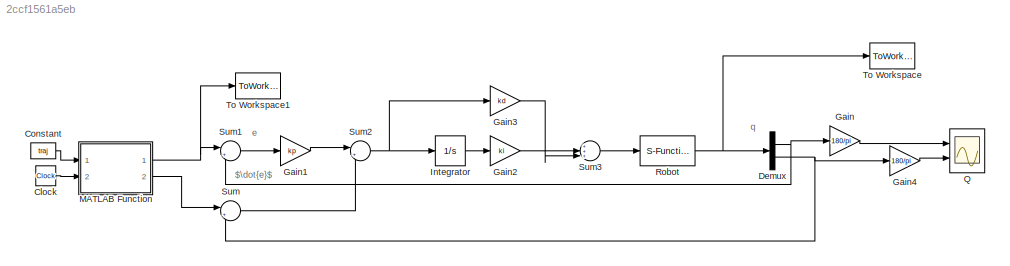
MODEL slx_2ccf1561a5eb
KIND model
CONFIG AbsTol = auto
CONFIG EnableMultiTasking = on
CONFIG FixedStep = auto
CONFIG MaxStep = 0.1
CONFIG MinStep = auto
CONFIG RelTol = 1e-4
CONFIG SampleTimeConstraint = Unconstrained
CONFIG SolverName = ode45
CONFIG StartTime = 0.0
CONFIG StopTime = 50
BLOCK [Clock] Clock
  DisplayTime = on
BLOCK [Constant] Constant
  Value = traj
BLOCK [Demux] Demux
  Outputs = 2
  Ports = [1, 2]
BLOCK [Gain] Gain
  Gain = 180/pi
BLOCK [Gain] Gain1
  Gain = kp
  Multiplication = Matrix(K*u)
BLOCK [Gain] Gain2
  Gain = ki
  Multiplication = Matrix(K*u)
BLOCK [Gain] Gain3
  Gain = kd
  Multiplication = Matrix(K*u)
BLOCK [Gain] Gain4
  Gain = 180/pi
BLOCK [Integrator] Integrator
  InitialCondition = [pi/4; -pi/2]
  Ports = [1, 1]
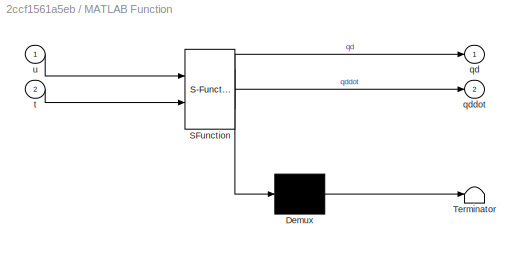
BLOCK [SubSystem] MATLAB Function
  ErrorFcn = Stateflow.Translate.translate
  PermitHierarchicalResolution = ExplicitOnly
  Ports = [2, 2]
  RequestExecContextInheritance = off
  SFBlockType = MATLAB Function
  TreatAsAtomicUnit = on
BLOCK [Demux] MATLAB Function/ Demux 
  Outputs = 1
  Ports = [1, 1]
BLOCK [S-Function] MATLAB Function/ SFunction 
  EnableBusSupport = on
  FunctionName = sf_sfun
  PortCounts = [2 3]
  Ports = [2, 3]
  SFcnIsStateOwnerBlock = off
  SFunctionDeploymentMode = off
  Tag = Stateflow S-Function 2
BLOCK [Terminator] MATLAB Function/ Terminator 
BLOCK [Outport] MATLAB Function/qd
BLOCK [Outport] MATLAB Function/qddot
  Port = 2
BLOCK [Inport] MATLAB Function/t
  Port = 2
BLOCK [Inport] MATLAB Function/u
BLOCK [Scope] Q
  Floating = off
  NumInputPorts = 2
  Ports = [2]
  ScopeSpecificationString = Simulink.scopes.TimeScopeBlockCfg('CurrentConfiguration', extmgr.ConfigurationSet(extmgr.Configuration('Core','General UI',true),extmgr.Configuration('Core','Source UI',true),extmgr.Configuration('Sources','WiredSimulink',true,'DataLoggingSaveFormat','StructureWithTime','DataLoggingLimitDataPoints',true,'DataLoggingDecimation','1','DataLoggingDecimateData',true),extmgr.Configuration('Visuals','Tim...<+2373ch>
BLOCK [S-Function] Robot
  EnableBusSupport = off
  FunctionName = robo
  Parameters = q0
  Ports = [1, 1]
  SFcnIsStateOwnerBlock = off
  SFunctionDeploymentMode = off
BLOCK [Sum] Sum
  Inputs = |+-
  Ports = [2, 1]
BLOCK [Sum] Sum1
  Inputs = |+-
  Ports = [2, 1]
BLOCK [Sum] Sum2
  Inputs = |++
  Ports = [2, 1]
BLOCK [Sum] Sum3
  Inputs = +++|
  Ports = [3, 1]
BLOCK [ToWorkspace] To Workspace
  FixptAsFi = on
  MaxDataPoints = inf
  Ports = [1]
  SampleTime = -1
  SaveFormat = Timeseries
  VariableName = q
BLOCK [ToWorkspace] To Workspace1
  FixptAsFi = on
  MaxDataPoints = inf
  Ports = [1]
  SampleTime = -1
  SaveFormat = Timeseries
  VariableName = qd
ANNOTATION (root): $\dot{e}$
ANNOTATION (root): e
ANNOTATION (root): q
LINE Clock:1 -> MATLAB Function:2
LINE Constant:1 -> MATLAB Function:1
NET Demux:1 -> Gain:1, Sum1:2
NET Demux:2 -> Gain4:1, Sum:2
LINE Gain1:1 -> Sum2:1
LINE Gain2:1 -> Sum3:3
LINE Gain3:1 -> Sum3:2
LINE Gain4:1 -> Q:2
LINE Gain:1 -> Q:1
LINE Integrator:1 -> Gain2:1
NET MATLAB Function:1 -> Sum1:1, To Workspace1:1
LINE MATLAB Function:2 -> Sum:1
NET Robot:1 -> Demux:1, To Workspace:1
LINE Sum1:1 -> Gain1:1
NET Sum2:1 -> Gain3:1, Integrator:1
LINE Sum3:1 -> Robot:1
LINE Sum:1 -> Sum2:2
note: NET lines group one-source signal fan-out (src -> all destinations, sorted); 1:1 wires keep LINE
CHART MATLAB Function states=1 transitions=1
  STATE_LABEL 'eML_blk_kernel()'
  STATE_LABEL 'SCRIPT:\nfunction [qd,qddot] = fcn(u,t)\nswitch u\n    case 1 % rapida\n        qd1= -0.75*cos(pi*t)-0.75;\n        qd2= -0.75*cos(1.2*pi*t)+3.75;\n        dt1 = 0.75*sin(pi*t)*pi;\n        dt2 = 0.75*sin(1.2*pi*t)*1.2*pi;\n    case 2 % lenta\n        qd1= -0.75*cos((pi/2)*t)-0.75;\n        qd2= -0.75*cos((1.2/2)*pi*t)+3.75;\n        dt1 = 0.75*sin((pi/2)*t)*pi/2;\n        dt2 = 0.75*sin((1.2/2)*pi*t)*(1.2/2)...<+154ch>'
CHART  states=0 transitions=0
